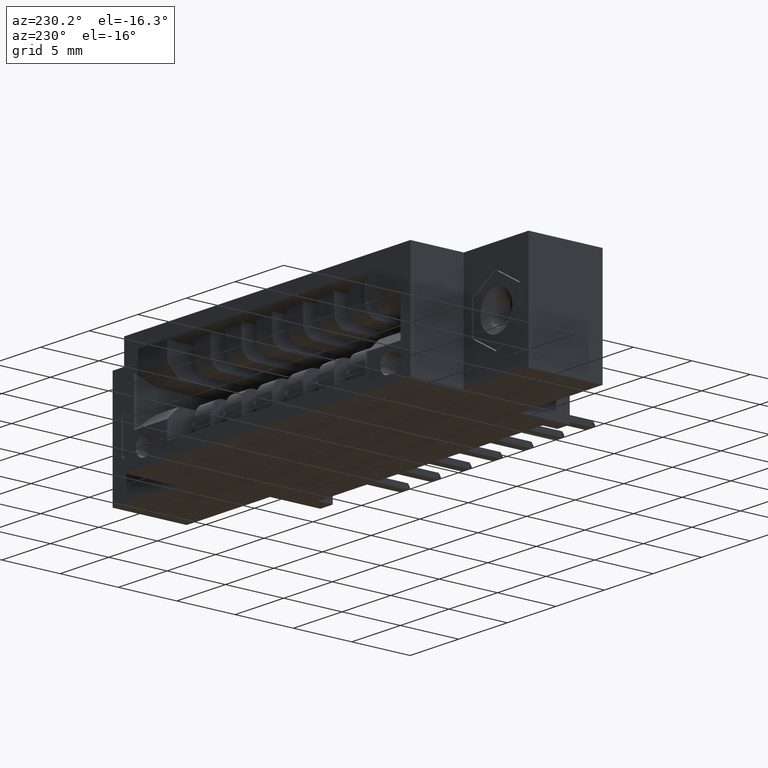
[diagram: clean part render]
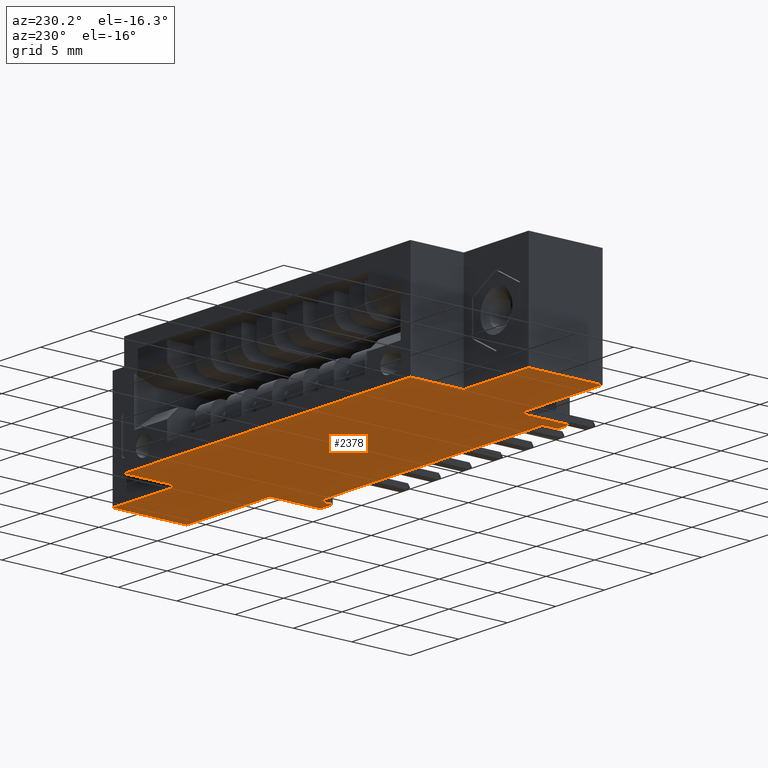
[diagram: same view with one face highlighted and labeled with its STEP entity id]
A machine part, auxiliary view. The second image highlights one B-rep face of the part: STEP entity #2378.
In plain terms, the highlighted planar face has unit normal (-0, 0, 1).
Its self-contained STEP definition (entity closure, byte-faithful):
#64 = CARTESIAN_POINT ( 'NONE',  ( 0.0000000000000000000, 0.5999999999999999778, -0.3700000000000001621 ) ) ;
#150 = VERTEX_POINT ( 'NONE', #942 ) ;
#179 = VECTOR ( 'NONE', #2365, 39.37007874015748143 ) ;
#227 = VERTEX_POINT ( 'NONE', #8929 ) ;
#229 = ORIENTED_EDGE ( 'NONE', *, *, #260, .F. ) ;
#260 = EDGE_CURVE ( 'NONE', #3424, #7088, #6595, .T. ) ;
#280 = CARTESIAN_POINT ( 'NONE',  ( 1.297500000000000098, 0.05000000000000000278, -0.3699999999999999956 ) ) ;
#434 = CARTESIAN_POINT ( 'NONE',  ( 1.422499999999999876, 0.5999999999999999778, -0.3699999999999998845 ) ) ;
#496 = EDGE_CURVE ( 'NONE', #227, #8191, #10349, .T. ) ;
#534 = VECTOR ( 'NONE', #9908, 39.37007874015748143 ) ;
#548 = DIRECTION ( 'NONE',  ( -1.000000000000000000, -0.0000000000000000000, -8.106373868439950759E-17 ) ) ;
#662 = CARTESIAN_POINT ( 'NONE',  ( 0.2625000000000000111, 0.5999999999999999778, -0.3700000000000001621 ) ) ;
#681 = ORIENTED_EDGE ( 'NONE', *, *, #9740, .F. ) ;
#820 = VECTOR ( 'NONE', #7319, 39.37007874015748143 ) ;
#913 = CARTESIAN_POINT ( 'NONE',  ( 1.684999999999999831, 0.1699999999999999845, -0.3699999999999999400 ) ) ;
#931 = EDGE_CURVE ( 'NONE', #8886, #4852, #10063, .T. ) ;
#942 = CARTESIAN_POINT ( 'NONE',  ( 1.684999999999999831, 0.1699999999999999845, -0.3699999999999999400 ) ) ;
#957 = DIRECTION ( 'NONE',  ( -0.0000000000000000000, -1.000000000000000000, -0.0000000000000000000 ) ) ;
#1007 = EDGE_CURVE ( 'NONE', #6000, #4852, #5016, .T. ) ;
#1200 = VECTOR ( 'NONE', #7736, 39.37007874015748143 ) ;
#1264 = ORIENTED_EDGE ( 'NONE', *, *, #6541, .T. ) ;
#1359 = ORIENTED_EDGE ( 'NONE', *, *, #7191, .F. ) ;
#1360 = LINE ( 'NONE', #1622, #4715 ) ;
#1622 = CARTESIAN_POINT ( 'NONE',  ( 0.3375000000000002442, 0.1699999999999999845, -0.3700000000000001621 ) ) ;
#1643 = EDGE_CURVE ( 'NONE', #10367, #6000, #4448, .T. ) ;
#1702 = DIRECTION ( 'NONE',  ( -1.000000000000000000, -0.0000000000000000000, -8.106373868439950759E-17 ) ) ;
#1758 = LINE ( 'NONE', #913, #534 ) ;
#1793 = CARTESIAN_POINT ( 'NONE',  ( 1.347500000000000142, 0.0000000000000000000, -0.3699999999999999956 ) ) ;
#2054 = CARTESIAN_POINT ( 'NONE',  ( 0.3375000000000002442, 0.1699999999999999845, -0.3700000000000001621 ) ) ;
#2091 = DIRECTION ( 'NONE',  ( -8.106373868439950759E-17, 0.0000000000000000000, 1.000000000000000000 ) ) ;
#2154 = DIRECTION ( 'NONE',  ( -0.0000000000000000000, -1.000000000000000000, -0.0000000000000000000 ) ) ;
#2176 = VECTOR ( 'NONE', #2370, 39.37007874015748143 ) ;
#2365 = DIRECTION ( 'NONE',  ( -0.0000000000000000000, -1.000000000000000000, -0.0000000000000000000 ) ) ;
#2370 = DIRECTION ( 'NONE',  ( -0.0000000000000000000, 1.000000000000000000, -0.0000000000000000000 ) ) ;
#2378 = ADVANCED_FACE ( 'NONE', ( #7810 ), #6145, .F. ) ;
#2485 = CARTESIAN_POINT ( 'NONE',  ( 0.0000000000000000000, 0.1699999999999999845, -0.3700000000000001621 ) ) ;
#2553 = EDGE_CURVE ( 'NONE', #8191, #7133, #7259, .T. ) ;
#2597 = VECTOR ( 'NONE', #9091, 39.37007874015748143 ) ;
#2700 = LINE ( 'NONE', #5256, #4725 ) ;
#2788 = VERTEX_POINT ( 'NONE', #2891 ) ;
#2798 = DIRECTION ( 'NONE',  ( 1.000000000000000000, 0.0000000000000000000, 8.106373868439950759E-17 ) ) ;
#2846 = DIRECTION ( 'NONE',  ( -1.000000000000000000, 0.0000000000000000000, 5.203519987931929940E-16 ) ) ;
#2887 = CARTESIAN_POINT ( 'NONE',  ( 0.0000000000000000000, 0.5999999999999999778, -0.3700000000000001621 ) ) ;
#2891 = CARTESIAN_POINT ( 'NONE',  ( 1.422499999999999876, 0.4199999999999999845, -0.3699999999999998845 ) ) ;
#2904 = ORIENTED_EDGE ( 'NONE', *, *, #931, .F. ) ;
#2984 = CARTESIAN_POINT ( 'NONE',  ( 0.2625000000000000111, 0.4199999999999999845, -0.3700000000000001621 ) ) ;
#3184 = AXIS2_PLACEMENT_3D ( 'NONE', #6999, #2091, #2798 ) ;
#3209 = ORIENTED_EDGE ( 'NONE', *, *, #7403, .F. ) ;
#3238 = ORIENTED_EDGE ( 'NONE', *, *, #1643, .T. ) ;
#3304 = CARTESIAN_POINT ( 'NONE',  ( 0.3874999999999999001, 0.0000000000000000000, -0.3700000000000001621 ) ) ;
#3361 = CARTESIAN_POINT ( 'NONE',  ( 0.0000000000000000000, 0.0000000000000000000, -0.3700000000000001621 ) ) ;
#3421 = VECTOR ( 'NONE', #8571, 39.37007874015748143 ) ;
#3424 = VERTEX_POINT ( 'NONE', #2485 ) ;
#3557 = VECTOR ( 'NONE', #5000, 39.37007874015748143 ) ;
#3704 = CARTESIAN_POINT ( 'NONE',  ( 1.684999999999999831, 0.4200000000000000400, -0.3699999999999999956 ) ) ;
#3765 = CARTESIAN_POINT ( 'NONE',  ( 0.3375000000000002442, 0.0000000000000000000, -0.3700000000000001621 ) ) ;
#3779 = ORIENTED_EDGE ( 'NONE', *, *, #6586, .T. ) ;
#3865 = VECTOR ( 'NONE', #5063, 39.37007874015748143 ) ;
#4047 = VERTEX_POINT ( 'NONE', #3704 ) ;
#4128 = LINE ( 'NONE', #8235, #2597 ) ;
#4250 = LINE ( 'NONE', #64, #3865 ) ;
#4417 = CARTESIAN_POINT ( 'NONE',  ( 1.684999999999999831, 0.5999999999999999778, -0.3699999999999999956 ) ) ;
#4448 = LINE ( 'NONE', #4545, #7077 ) ;
#4528 = EDGE_CURVE ( 'NONE', #5800, #5841, #4128, .T. ) ;
#4545 = CARTESIAN_POINT ( 'NONE',  ( 1.347500000000000142, 0.1699999999999999845, -0.3699999999999999956 ) ) ;
#4715 = VECTOR ( 'NONE', #5715, 39.37007874015748143 ) ;
#4725 = VECTOR ( 'NONE', #2846, 39.37007874015748143 ) ;
#4840 = VERTEX_POINT ( 'NONE', #662 ) ;
#4852 = VERTEX_POINT ( 'NONE', #10442 ) ;
#5000 = DIRECTION ( 'NONE',  ( 1.000000000000000000, 0.0000000000000000000, 0.0000000000000000000 ) ) ;
#5016 = LINE ( 'NONE', #3361, #8958 ) ;
#5038 = ORIENTED_EDGE ( 'NONE', *, *, #496, .T. ) ;
#5063 = DIRECTION ( 'NONE',  ( -0.0000000000000000000, -1.000000000000000000, -0.0000000000000000000 ) ) ;
#5175 = ORIENTED_EDGE ( 'NONE', *, *, #6418, .F. ) ;
#5256 = CARTESIAN_POINT ( 'NONE',  ( 1.684999999999999831, 0.4199999999999999845, -0.3699999999999999956 ) ) ;
#5596 = ORIENTED_EDGE ( 'NONE', *, *, #2553, .T. ) ;
#5644 = VERTEX_POINT ( 'NONE', #434 ) ;
#5697 = VECTOR ( 'NONE', #957, 39.37007874015748143 ) ;
#5715 = DIRECTION ( 'NONE',  ( -0.0000000000000000000, -1.000000000000000000, -0.0000000000000000000 ) ) ;
#5743 = ORIENTED_EDGE ( 'NONE', *, *, #1007, .T. ) ;
#5777 = CARTESIAN_POINT ( 'NONE',  ( 0.0000000000000000000, 0.4199999999999999845, -0.3700000000000001621 ) ) ;
#5800 = VERTEX_POINT ( 'NONE', #9619 ) ;
#5841 = VERTEX_POINT ( 'NONE', #5777 ) ;
#6000 = VERTEX_POINT ( 'NONE', #1793 ) ;
#6058 = LINE ( 'NONE', #4417, #1200 ) ;
#6145 = PLANE ( 'NONE',  #3184 ) ;
#6153 = CARTESIAN_POINT ( 'NONE',  ( 1.297500000000000098, 0.05000000000000000278, -0.3699999999999999956 ) ) ;
#6326 = CARTESIAN_POINT ( 'NONE',  ( 1.422499999999999876, 0.4199999999999999845, -0.3699999999999998845 ) ) ;
#6331 = ORIENTED_EDGE ( 'NONE', *, *, #7292, .F. ) ;
#6365 = CARTESIAN_POINT ( 'NONE',  ( 0.0000000000000000000, 0.0000000000000000000, -0.3700000000000001621 ) ) ;
#6418 = EDGE_CURVE ( 'NONE', #10367, #150, #1758, .T. ) ;
#6541 = EDGE_CURVE ( 'NONE', #4047, #150, #6058, .T. ) ;
#6586 = EDGE_CURVE ( 'NONE', #5800, #4840, #10108, .T. ) ;
#6595 = LINE ( 'NONE', #9048, #3557 ) ;
#6832 = CARTESIAN_POINT ( 'NONE',  ( 0.3874999999999999001, 0.05000000000000000278, -0.3700000000000001621 ) ) ;
#6982 = LINE ( 'NONE', #2887, #7097 ) ;
#6999 = CARTESIAN_POINT ( 'NONE',  ( 0.0000000000000000000, 0.5999999999999999778, -0.3700000000000001621 ) ) ;
#7077 = VECTOR ( 'NONE', #2154, 39.37007874015748143 ) ;
#7088 = VERTEX_POINT ( 'NONE', #2054 ) ;
#7097 = VECTOR ( 'NONE', #548, 39.37007874015748143 ) ;
#7121 = CARTESIAN_POINT ( 'NONE',  ( 1.347500000000000142, 0.1699999999999999845, -0.3699999999999999956 ) ) ;
#7133 = VERTEX_POINT ( 'NONE', #3765 ) ;
#7191 = EDGE_CURVE ( 'NONE', #2788, #5644, #10454, .T. ) ;
#7259 = LINE ( 'NONE', #6365, #820 ) ;
#7292 = EDGE_CURVE ( 'NONE', #7088, #7133, #1360, .T. ) ;
#7319 = DIRECTION ( 'NONE',  ( -1.000000000000000000, -0.0000000000000000000, -8.106373868439950759E-17 ) ) ;
#7403 = EDGE_CURVE ( 'NONE', #4047, #2788, #2700, .T. ) ;
#7736 = DIRECTION ( 'NONE',  ( -0.0000000000000000000, -1.000000000000000000, -0.0000000000000000000 ) ) ;
#7810 = FACE_OUTER_BOUND ( 'NONE', #9912, .T. ) ;
#7871 = CARTESIAN_POINT ( 'NONE',  ( 0.3874999999999999001, 0.05000000000000000278, -0.3700000000000001621 ) ) ;
#8190 = EDGE_CURVE ( 'NONE', #5841, #3424, #4250, .T. ) ;
#8191 = VERTEX_POINT ( 'NONE', #3304 ) ;
#8235 = CARTESIAN_POINT ( 'NONE',  ( 0.0000000000000000000, 0.4199999999999999845, -0.3700000000000001621 ) ) ;
#8505 = EDGE_CURVE ( 'NONE', #227, #8886, #9286, .T. ) ;
#8571 = DIRECTION ( 'NONE',  ( -0.0000000000000000000, 1.000000000000000000, -0.0000000000000000000 ) ) ;
#8672 = ORIENTED_EDGE ( 'NONE', *, *, #8190, .F. ) ;
#8886 = VERTEX_POINT ( 'NONE', #6153 ) ;
#8929 = CARTESIAN_POINT ( 'NONE',  ( 0.3874999999999999001, 0.05000000000000000278, -0.3700000000000001621 ) ) ;
#8958 = VECTOR ( 'NONE', #1702, 39.37007874015748143 ) ;
#9048 = CARTESIAN_POINT ( 'NONE',  ( 0.0000000000000000000, 0.1699999999999999845, -0.3700000000000001621 ) ) ;
#9091 = DIRECTION ( 'NONE',  ( -1.000000000000000000, -0.0000000000000000000, -0.0000000000000000000 ) ) ;
#9286 = LINE ( 'NONE', #6832, #10297 ) ;
#9619 = CARTESIAN_POINT ( 'NONE',  ( 0.2625000000000000111, 0.4199999999999999845, -0.3700000000000001621 ) ) ;
#9740 = EDGE_CURVE ( 'NONE', #5644, #4840, #6982, .T. ) ;
#9875 = ORIENTED_EDGE ( 'NONE', *, *, #4528, .F. ) ;
#9908 = DIRECTION ( 'NONE',  ( 1.000000000000000000, -0.0000000000000000000, 2.023591106417973247E-16 ) ) ;
#9912 = EDGE_LOOP ( 'NONE', ( #5175, #3238, #5743, #2904, #10151, #5038, #5596, #6331, #229, #8672, #9875, #3779, #681, #1359, #3209, #1264 ) ) ;
#10063 = LINE ( 'NONE', #280, #5697 ) ;
#10073 = DIRECTION ( 'NONE',  ( 1.000000000000000000, 0.0000000000000000000, 1.501015381134210332E-16 ) ) ;
#10108 = LINE ( 'NONE', #2984, #3421 ) ;
#10151 = ORIENTED_EDGE ( 'NONE', *, *, #8505, .F. ) ;
#10297 = VECTOR ( 'NONE', #10073, 39.37007874015748143 ) ;
#10349 = LINE ( 'NONE', #7871, #179 ) ;
#10367 = VERTEX_POINT ( 'NONE', #7121 ) ;
#10442 = CARTESIAN_POINT ( 'NONE',  ( 1.297500000000000098, 0.0000000000000000000, -0.3699999999999999956 ) ) ;
#10454 = LINE ( 'NONE', #6326, #2176 ) ;